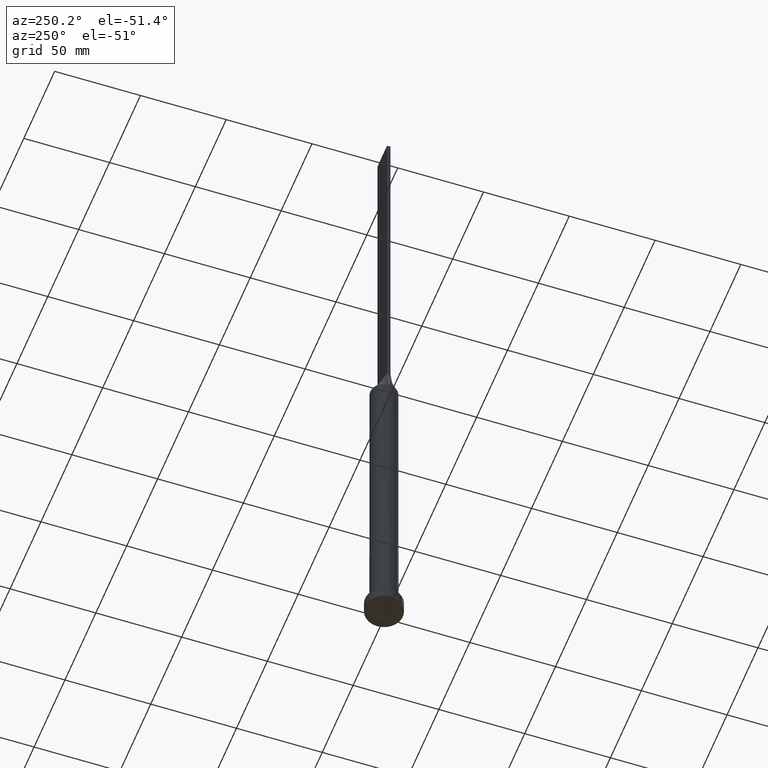
[diagram: clean part render]
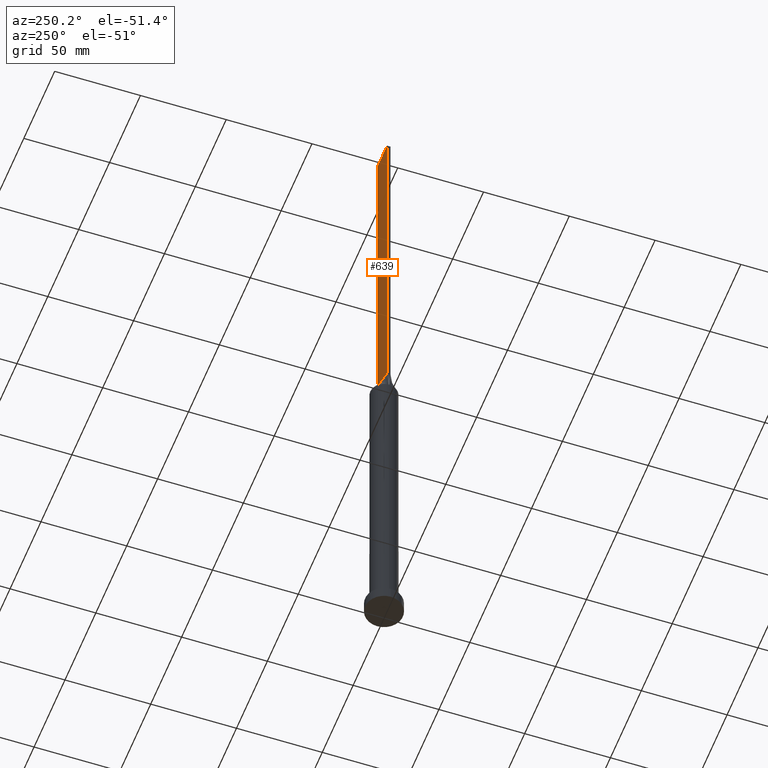
[diagram: same view with one face highlighted and labeled with its STEP entity id]
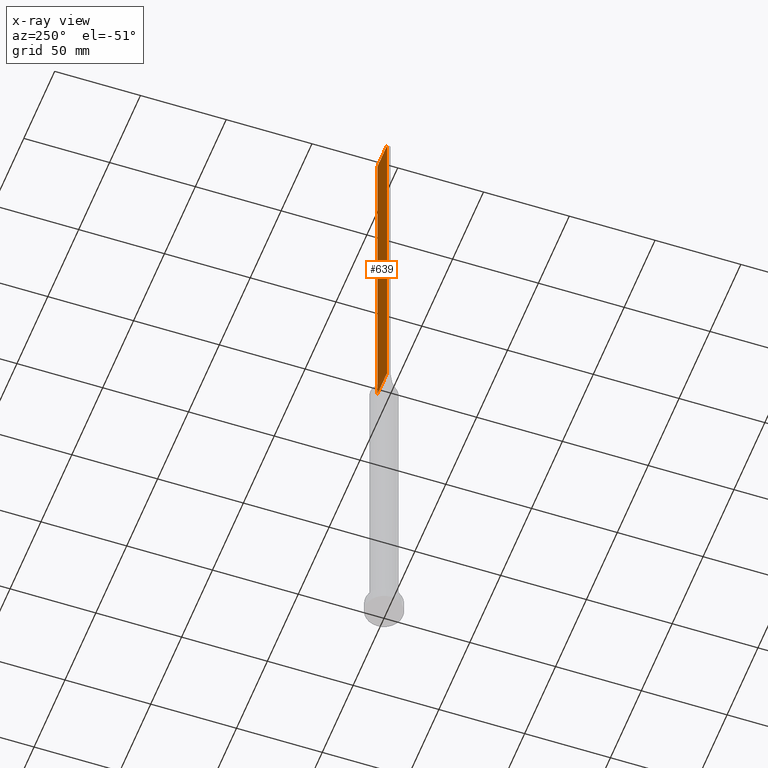
[diagram: x-ray of the same camera — body ghosted, the highlighted face saturated]
A machine part, auxiliary view. The second image highlights one B-rep face of the part: STEP entity #639.
The next image is the same camera in x-ray: the body ghosted, the highlighted face saturated — about 0% of this face is hidden behind the body in this view.
In plain terms, the highlighted planar face has unit normal (0, -1, 0).
Its self-contained STEP definition (entity closure, byte-faithful):
#26 = CARTESIAN_POINT ( 'NONE',  ( -7.750000000000000000, 1.000000000000000000, 200.0000000000000000 ) ) ;
#44 = PLANE ( 'NONE',  #277 ) ;
#93 = VECTOR ( 'NONE', #231, 1000.000000000000000 ) ;
#127 = VERTEX_POINT ( 'NONE', #485 ) ;
#139 = LINE ( 'NONE', #492, #259 ) ;
#145 = ORIENTED_EDGE ( 'NONE', *, *, #325, .F. ) ;
#174 = ORIENTED_EDGE ( 'NONE', *, *, #445, .T. ) ;
#220 = CARTESIAN_POINT ( 'NONE',  ( -7.750000000000000000, 1.000000000000000000, 400.0000000000000000 ) ) ;
#231 = DIRECTION ( 'NONE',  ( -1.000000000000000000, -0.000000000000000000, -0.000000000000000000 ) ) ;
#251 = LINE ( 'NONE', #504, #566 ) ;
#259 = VECTOR ( 'NONE', #641, 1000.000000000000000 ) ;
#268 = LINE ( 'NONE', #326, #576 ) ;
#277 = AXIS2_PLACEMENT_3D ( 'NONE', #401, #489, #343 ) ;
#302 = EDGE_LOOP ( 'NONE', ( #174, #380, #145, #562 ) ) ;
#325 = EDGE_CURVE ( 'NONE', #418, #328, #251, .T. ) ;
#326 = CARTESIAN_POINT ( 'NONE',  ( -7.750000000000000000, 1.000000000000000000, 400.0000000000000000 ) ) ;
#328 = VERTEX_POINT ( 'NONE', #220 ) ;
#339 = FACE_OUTER_BOUND ( 'NONE', #302, .T. ) ;
#343 = DIRECTION ( 'NONE',  ( 0.000000000000000000, -0.000000000000000000, -1.000000000000000000 ) ) ;
#377 = CARTESIAN_POINT ( 'NONE',  ( -7.750000000000000000, 1.000000000000000000, 200.0000000000000000 ) ) ;
#380 = ORIENTED_EDGE ( 'NONE', *, *, #524, .F. ) ;
#401 = CARTESIAN_POINT ( 'NONE',  ( 7.750000000000000000, 1.000000000000000000, 400.0000000000000000 ) ) ;
#418 = VERTEX_POINT ( 'NONE', #466 ) ;
#419 = LINE ( 'NONE', #26, #93 ) ;
#424 = DIRECTION ( 'NONE',  ( -0.000000000000000000, -0.000000000000000000, -1.000000000000000000 ) ) ;
#445 = EDGE_CURVE ( 'NONE', #127, #555, #419, .T. ) ;
#466 = CARTESIAN_POINT ( 'NONE',  ( 7.750000000000000000, 1.000000000000000000, 400.0000000000000000 ) ) ;
#485 = CARTESIAN_POINT ( 'NONE',  ( 7.750000000000000000, 1.000000000000000000, 200.0000000000000000 ) ) ;
#489 = DIRECTION ( 'NONE',  ( 0.000000000000000000, -1.000000000000000000, 0.000000000000000000 ) ) ;
#492 = CARTESIAN_POINT ( 'NONE',  ( 7.750000000000000000, 1.000000000000000000, 400.0000000000000000 ) ) ;
#504 = CARTESIAN_POINT ( 'NONE',  ( 7.750000000000000000, 1.000000000000000000, 400.0000000000000000 ) ) ;
#524 = EDGE_CURVE ( 'NONE', #328, #555, #268, .T. ) ;
#555 = VERTEX_POINT ( 'NONE', #377 ) ;
#562 = ORIENTED_EDGE ( 'NONE', *, *, #624, .T. ) ;
#565 = DIRECTION ( 'NONE',  ( -1.000000000000000000, 0.000000000000000000, 0.000000000000000000 ) ) ;
#566 = VECTOR ( 'NONE', #565, 1000.000000000000000 ) ;
#576 = VECTOR ( 'NONE', #424, 1000.000000000000000 ) ;
#624 = EDGE_CURVE ( 'NONE', #418, #127, #139, .T. ) ;
#639 = ADVANCED_FACE ( 'NONE', ( #339 ), #44, .F. ) ;
#641 = DIRECTION ( 'NONE',  ( -0.000000000000000000, -0.000000000000000000, -1.000000000000000000 ) ) ;